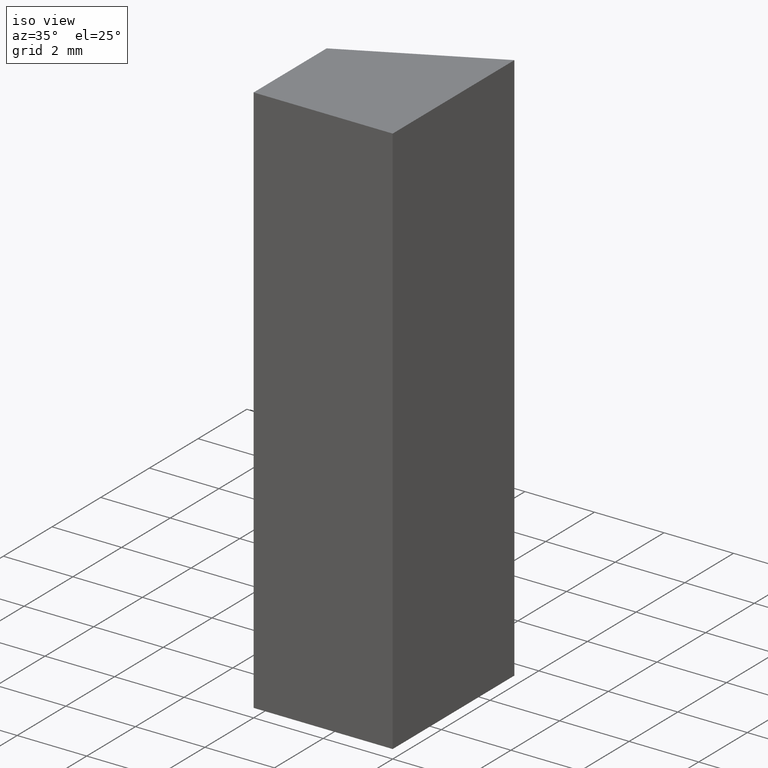
[diagram: clean part render]
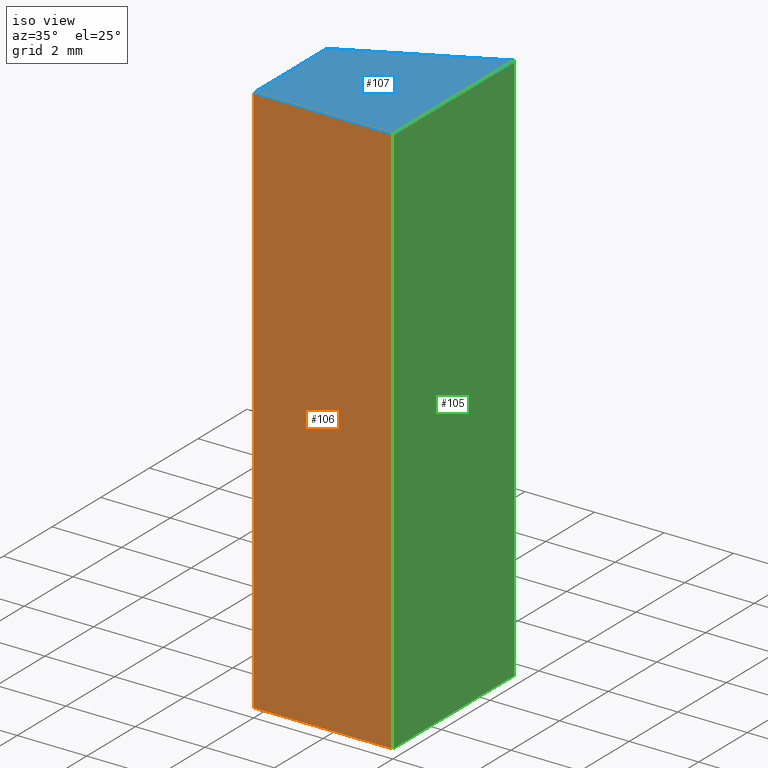
[diagram: same view with three faces highlighted in distinct colors, each labeled with its STEP entity id]
A machine part, iso view with three faces highlighted in distinct colors.
Their STEP definitions:

[orange] entity #106 — the highlighted planar face has unit normal (0, -1, 0).
#20=FACE_OUTER_BOUND('',#26,.T.);
#26=EDGE_LOOP('',(#88,#89,#90,#91));
#29=LINE('',#169,#41);
#34=LINE('',#178,#46);
#38=LINE('',#186,#50);
#39=LINE('',#188,#51);
#41=VECTOR('',#142,10.);
#46=VECTOR('',#149,10.);
#50=VECTOR('',#157,10.);
#51=VECTOR('',#160,10.);
#52=VERTEX_POINT('',#165);
#54=VERTEX_POINT('',#168);
#56=VERTEX_POINT('',#174);
#59=VERTEX_POINT('',#184);
#61=EDGE_CURVE('',#54,#52,#29,.T.);
#66=EDGE_CURVE('',#56,#54,#34,.T.);
#70=EDGE_CURVE('',#52,#59,#38,.T.);
#71=EDGE_CURVE('',#59,#56,#39,.T.);
#88=ORIENTED_EDGE('',*,*,#71,.T.);
#89=ORIENTED_EDGE('',*,*,#66,.T.);
#90=ORIENTED_EDGE('',*,*,#61,.T.);
#91=ORIENTED_EDGE('',*,*,#70,.T.);
#100=PLANE('',#135);
#106=ADVANCED_FACE('',(#20),#100,.T.);
#135=AXIS2_PLACEMENT_3D('',#187,#158,#159);
#142=DIRECTION('',(1.,1.83147902327169E-16,0.));
#149=DIRECTION('',(0.,0.,-1.));
#157=DIRECTION('',(0.,0.,1.));
#158=DIRECTION('center_axis',(1.83147902327169E-16,-1.,0.));
#159=DIRECTION('ref_axis',(0.,0.,-1.));
#160=DIRECTION('',(-1.,-1.83147902327169E-16,0.));
#165=CARTESIAN_POINT('',(3.33066907387547E-15,2.22044604925031E-15,-8.));
#168=CARTESIAN_POINT('',(-4.,1.48785443994164E-15,-8.));
#169=CARTESIAN_POINT('',(3.33066907387547E-15,2.22044604925031E-15,-8.));
#174=CARTESIAN_POINT('',(-4.,1.48785443994164E-15,8.));
#178=CARTESIAN_POINT('',(-4.,1.48785443994164E-15,0.));
#184=CARTESIAN_POINT('',(3.33066907387547E-15,2.22044604925031E-15,8.));
#186=CARTESIAN_POINT('',(3.33066907387547E-15,2.22044604925031E-15,0.));
#187=CARTESIAN_POINT('Origin',(3.33066907387547E-15,2.22044604925031E-15,
0.));
#188=CARTESIAN_POINT('',(3.33066907387547E-15,2.22044604925031E-15,8.));

[blue] entity #107 — the highlighted planar face has unit normal (0, 0, 1).
#21=FACE_OUTER_BOUND('',#27,.T.);
#27=EDGE_LOOP('',(#92,#93,#94,#95));
#32=LINE('',#176,#44);
#35=LINE('',#181,#47);
#37=LINE('',#185,#49);
#39=LINE('',#188,#51);
#44=VECTOR('',#147,10.);
#47=VECTOR('',#152,10.);
#49=VECTOR('',#156,10.);
#51=VECTOR('',#160,10.);
#56=VERTEX_POINT('',#174);
#57=VERTEX_POINT('',#175);
#58=VERTEX_POINT('',#180);
#59=VERTEX_POINT('',#184);
#64=EDGE_CURVE('',#56,#57,#32,.T.);
#67=EDGE_CURVE('',#57,#58,#35,.T.);
#69=EDGE_CURVE('',#58,#59,#37,.T.);
#71=EDGE_CURVE('',#59,#56,#39,.T.);
#92=ORIENTED_EDGE('',*,*,#64,.F.);
#93=ORIENTED_EDGE('',*,*,#71,.F.);
#94=ORIENTED_EDGE('',*,*,#69,.F.);
#95=ORIENTED_EDGE('',*,*,#67,.F.);
#101=PLANE('',#136);
#107=ADVANCED_FACE('',(#21),#101,.T.);
#136=AXIS2_PLACEMENT_3D('',#189,#161,#162);
#147=DIRECTION('',(-7.40148683083437E-16,1.,0.));
#152=DIRECTION('',(0.894427190999916,0.447213595499957,0.));
#156=DIRECTION('',(2.22044604925031E-16,-1.,0.));
#160=DIRECTION('',(-1.,-1.83147902327169E-16,0.));
#161=DIRECTION('center_axis',(0.,0.,1.));
#162=DIRECTION('ref_axis',(1.,0.,0.));
#174=CARTESIAN_POINT('',(-4.,1.48785443994164E-15,8.));
#175=CARTESIAN_POINT('',(-4.,3.,8.));
#176=CARTESIAN_POINT('',(-4.,1.48785443994164E-15,8.));
#180=CARTESIAN_POINT('',(2.22044604925031E-15,5.,8.));
#181=CARTESIAN_POINT('',(-4.,3.,8.));
#184=CARTESIAN_POINT('',(3.33066907387547E-15,2.22044604925031E-15,8.));
#185=CARTESIAN_POINT('',(2.22044604925031E-15,5.,8.));
#188=CARTESIAN_POINT('',(3.33066907387547E-15,2.22044604925031E-15,8.));
#189=CARTESIAN_POINT('Origin',(-1.75716567596773,2.1180339887499,8.));

[green] entity #105 — the highlighted planar face has unit normal (1, 0, 0).
#19=FACE_OUTER_BOUND('',#25,.T.);
#25=EDGE_LOOP('',(#84,#85,#86,#87));
#28=LINE('',#167,#40);
#36=LINE('',#182,#48);
#37=LINE('',#185,#49);
#38=LINE('',#186,#50);
#40=VECTOR('',#141,10.);
#48=VECTOR('',#153,10.);
#49=VECTOR('',#156,10.);
#50=VECTOR('',#157,10.);
#52=VERTEX_POINT('',#165);
#53=VERTEX_POINT('',#166);
#58=VERTEX_POINT('',#180);
#59=VERTEX_POINT('',#184);
#60=EDGE_CURVE('',#52,#53,#28,.T.);
#68=EDGE_CURVE('',#58,#53,#36,.T.);
#69=EDGE_CURVE('',#58,#59,#37,.T.);
#70=EDGE_CURVE('',#52,#59,#38,.T.);
#84=ORIENTED_EDGE('',*,*,#69,.T.);
#85=ORIENTED_EDGE('',*,*,#70,.F.);
#86=ORIENTED_EDGE('',*,*,#60,.T.);
#87=ORIENTED_EDGE('',*,*,#68,.F.);
#99=PLANE('',#134);
#105=ADVANCED_FACE('',(#19),#99,.T.);
#134=AXIS2_PLACEMENT_3D('',#183,#154,#155);
#141=DIRECTION('',(-2.22044604925031E-16,1.,0.));
#153=DIRECTION('',(0.,0.,-1.));
#154=DIRECTION('center_axis',(1.,2.22044604925031E-16,0.));
#155=DIRECTION('ref_axis',(0.,0.,-1.));
#156=DIRECTION('',(2.22044604925031E-16,-1.,0.));
#157=DIRECTION('',(0.,0.,1.));
#165=CARTESIAN_POINT('',(3.33066907387547E-15,2.22044604925031E-15,-8.));
#166=CARTESIAN_POINT('',(2.22044604925031E-15,5.,-8.));
#167=CARTESIAN_POINT('',(2.22044604925031E-15,5.,-8.));
#180=CARTESIAN_POINT('',(2.22044604925031E-15,5.,8.));
#182=CARTESIAN_POINT('',(2.22044604925031E-15,5.,0.));
#183=CARTESIAN_POINT('Origin',(2.22044604925031E-15,5.,0.));
#184=CARTESIAN_POINT('',(3.33066907387547E-15,2.22044604925031E-15,8.));
#185=CARTESIAN_POINT('',(2.22044604925031E-15,5.,8.));
#186=CARTESIAN_POINT('',(3.33066907387547E-15,2.22044604925031E-15,0.));